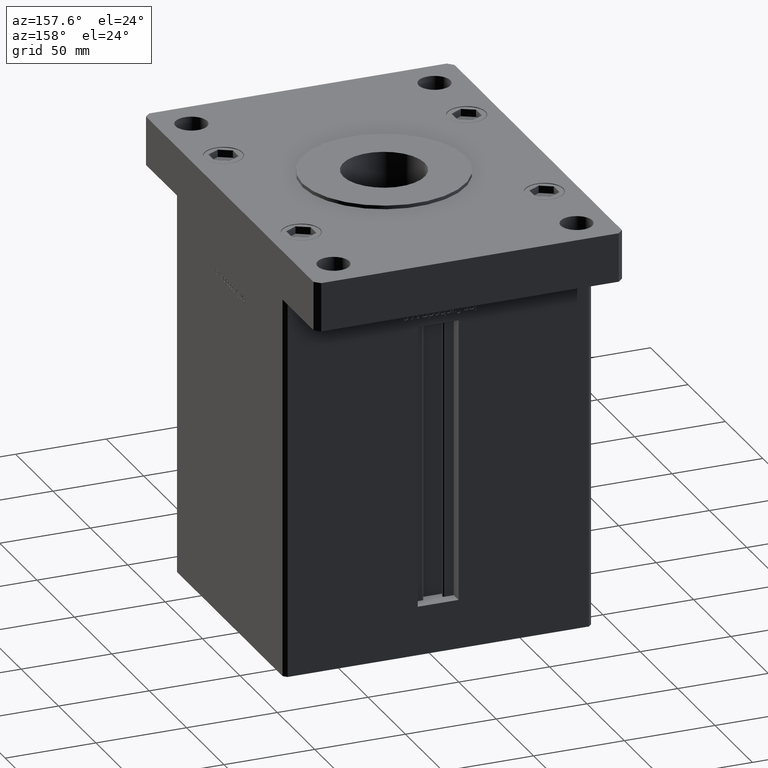
[diagram: clean part render]
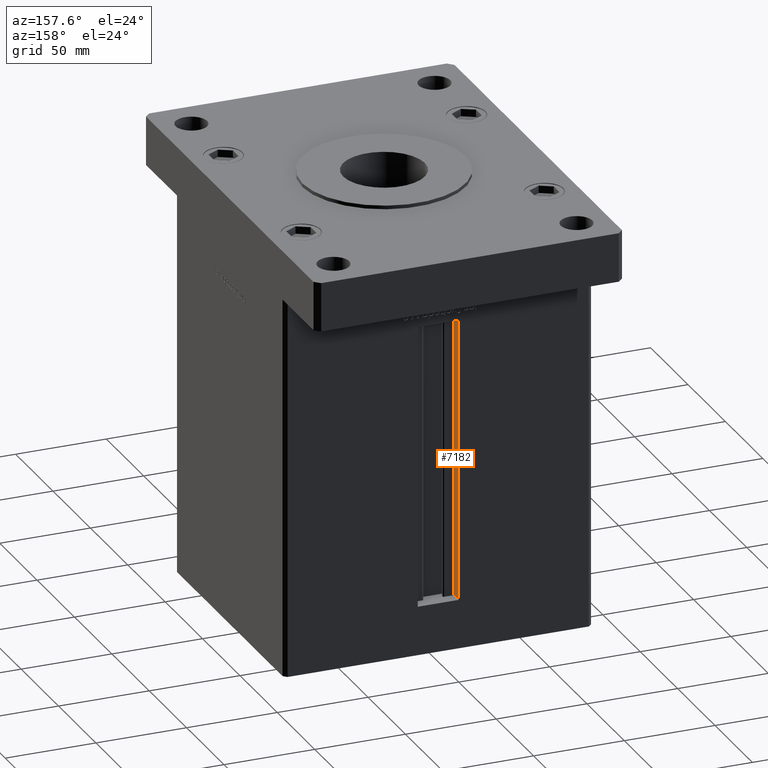
[diagram: same view with one face highlighted and labeled with its STEP entity id]
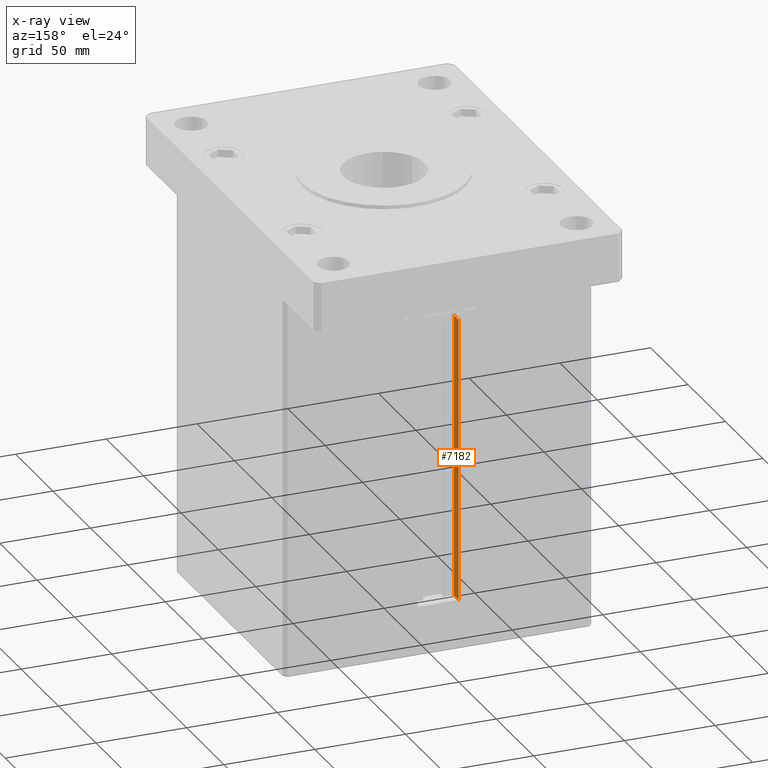
[diagram: x-ray of the same camera — body ghosted, the highlighted face saturated]
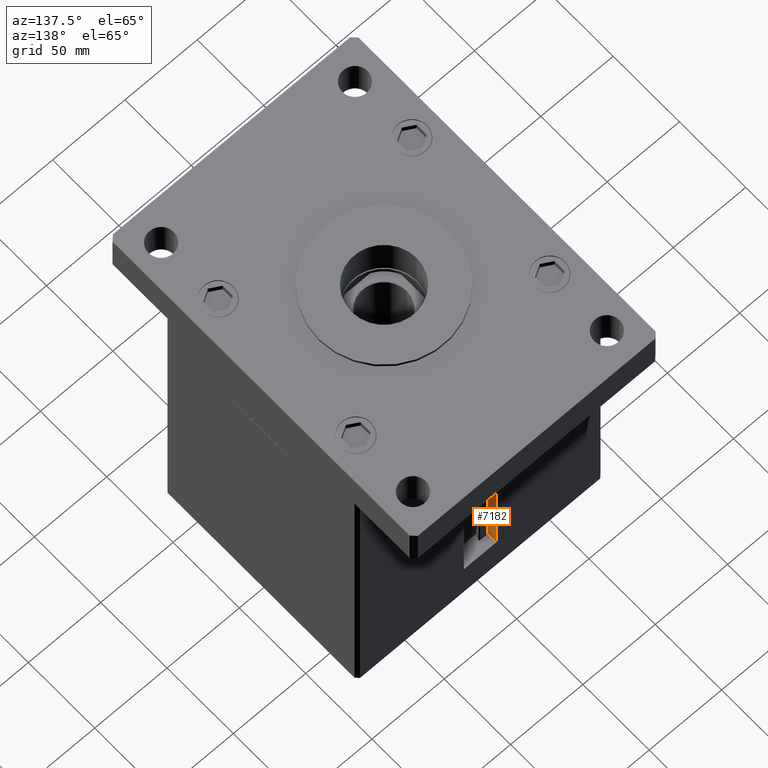
[diagram: same view with one face highlighted and labeled with its STEP entity id]
A machine part, auxiliary view. The second image highlights one B-rep face of the part: STEP entity #7182.
The next image is the same camera in x-ray: the body ghosted, the highlighted face saturated — about 0% of this face is hidden behind the body in this view.
A second angle (auxiliary view) of the same face is appended — the face is thin or edge-on in the first view.
In plain terms, the highlighted planar face has unit normal (-1, 0, 0).
Its self-contained STEP definition (entity closure, byte-faithful):
#842 = VERTEX_POINT ( 'NONE', #25211 ) ;
#2815 = ORIENTED_EDGE ( 'NONE', *, *, #9799, .F. ) ;
#7182 = ADVANCED_FACE ( 'NONE', ( #50060 ), #34352, .F. ) ;
#9437 = DIRECTION ( 'NONE',  ( 0.000000000000000000, 0.000000000000000000, 1.000000000000000000 ) ) ;
#9799 = EDGE_CURVE ( 'NONE', #25970, #40747, #13349, .T. ) ;
#11302 = VECTOR ( 'NONE', #52807, 1000.000000000000000 ) ;
#12918 = CARTESIAN_POINT ( 'NONE',  ( -11.25000000000000178, 65.99999999999997158, 0.000000000000000000 ) ) ;
#13349 = LINE ( 'NONE', #26076, #16202 ) ;
#13507 = CARTESIAN_POINT ( 'NONE',  ( -11.25000000000000178, 0.000000000000000000, 156.0000000000000000 ) ) ;
#14629 = ORIENTED_EDGE ( 'NONE', *, *, #24686, .T. ) ;
#15174 = CARTESIAN_POINT ( 'NONE',  ( -11.25000000000000178, 72.49999999999998579, 0.000000000000000000 ) ) ;
#15611 = LINE ( 'NONE', #24533, #17555 ) ;
#16202 = VECTOR ( 'NONE', #30409, 1000.000000000000000 ) ;
#16412 = DIRECTION ( 'NONE',  ( -0.000000000000000000, -1.000000000000000000, -0.000000000000000000 ) ) ;
#17459 = VERTEX_POINT ( 'NONE', #31193 ) ;
#17555 = VECTOR ( 'NONE', #16412, 1000.000000000000000 ) ;
#18221 = EDGE_LOOP ( 'NONE', ( #2815, #35003, #14629, #41950 ) ) ;
#19756 = LINE ( 'NONE', #15174, #11302 ) ;
#22167 = LINE ( 'NONE', #13507, #41576 ) ;
#24533 = CARTESIAN_POINT ( 'NONE',  ( -11.25000000000000178, 65.99999999999997158, 0.000000000000000000 ) ) ;
#24686 = EDGE_CURVE ( 'NONE', #842, #17459, #19756, .T. ) ;
#24805 = EDGE_CURVE ( 'NONE', #40747, #17459, #22167, .T. ) ;
#25211 = CARTESIAN_POINT ( 'NONE',  ( -11.25000000000000178, 72.49999999999998579, 0.000000000000000000 ) ) ;
#25249 = CARTESIAN_POINT ( 'NONE',  ( -11.25000000000000178, 65.99999999999997158, 156.0000000000000000 ) ) ;
#25699 = DIRECTION ( 'NONE',  ( 0.000000000000000000, 1.000000000000000000, 0.000000000000000000 ) ) ;
#25970 = VERTEX_POINT ( 'NONE', #12918 ) ;
#26076 = CARTESIAN_POINT ( 'NONE',  ( -11.25000000000000178, 65.99999999999997158, 0.000000000000000000 ) ) ;
#28256 = AXIS2_PLACEMENT_3D ( 'NONE', #45999, #30276, #9437 ) ;
#30276 = DIRECTION ( 'NONE',  ( -1.000000000000000000, 0.000000000000000000, 0.000000000000000000 ) ) ;
#30409 = DIRECTION ( 'NONE',  ( -0.000000000000000000, -0.000000000000000000, 1.000000000000000000 ) ) ;
#31193 = CARTESIAN_POINT ( 'NONE',  ( -11.25000000000000178, 72.49999999999998579, 156.0000000000000000 ) ) ;
#34352 = PLANE ( 'NONE',  #28256 ) ;
#35003 = ORIENTED_EDGE ( 'NONE', *, *, #36625, .F. ) ;
#36625 = EDGE_CURVE ( 'NONE', #842, #25970, #15611, .T. ) ;
#40747 = VERTEX_POINT ( 'NONE', #25249 ) ;
#41576 = VECTOR ( 'NONE', #25699, 1000.000000000000000 ) ;
#41950 = ORIENTED_EDGE ( 'NONE', *, *, #24805, .F. ) ;
#45999 = CARTESIAN_POINT ( 'NONE',  ( -11.25000000000000178, 65.99999999999997158, 0.000000000000000000 ) ) ;
#50060 = FACE_OUTER_BOUND ( 'NONE', #18221, .T. ) ;
#52807 = DIRECTION ( 'NONE',  ( -0.000000000000000000, -0.000000000000000000, 1.000000000000000000 ) ) ;